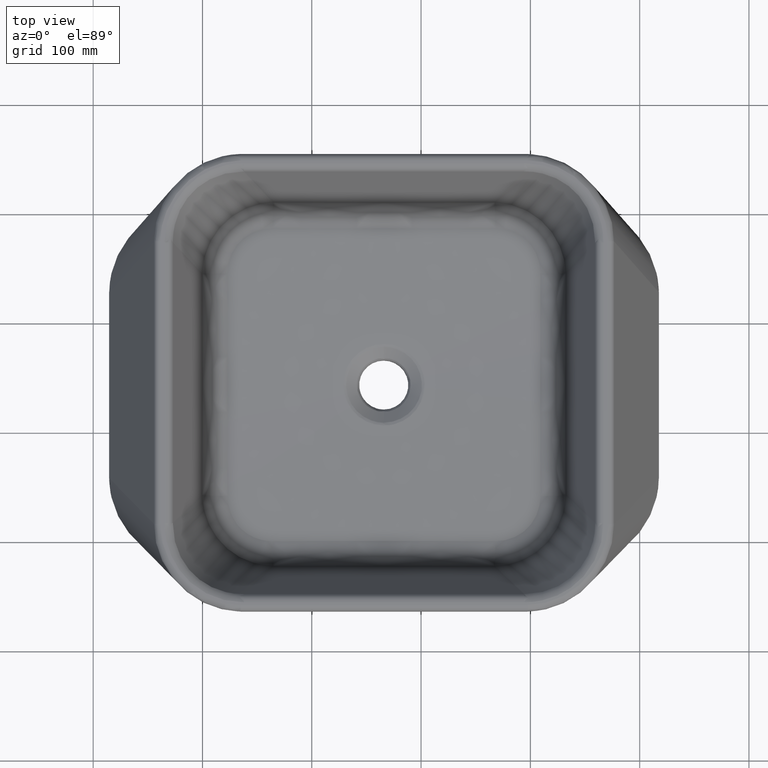
[diagram: clean part render]
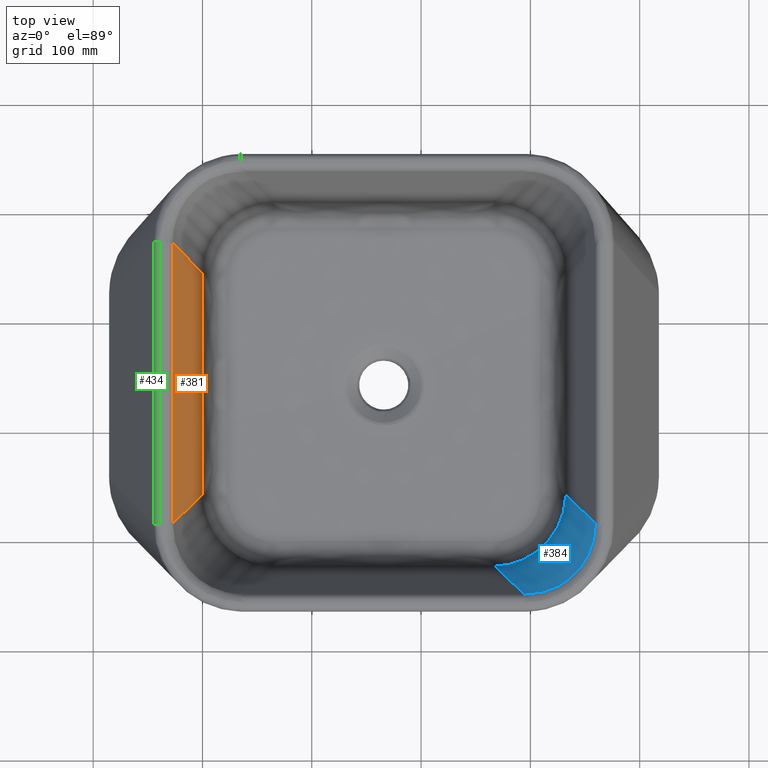
[diagram: same view with three faces highlighted in distinct colors, each labeled with its STEP entity id]
A machine part, top view with three faces highlighted in distinct colors.
Their STEP definitions:

[orange] entity #381 — the highlighted planar face has unit normal (-0.9558, 0, -0.2942).
#194=FACE_OUTER_BOUND('',#482,.T.);
#263=PLANE('',#1251);
#304=LINE('',#2039,#344);
#305=LINE('',#2060,#345);
#306=LINE('',#2062,#346);
#344=VECTOR('',#1362,1.);
#345=VECTOR('',#1365,1.);
#346=VECTOR('',#1366,1.);
#381=ADVANCED_FACE('',(#194),#263,.F.);
#482=EDGE_LOOP('',(#595,#596,#597,#598));
#595=ORIENTED_EDGE('',*,*,#1031,.T.);
#596=ORIENTED_EDGE('',*,*,#1033,.T.);
#597=ORIENTED_EDGE('',*,*,#1034,.T.);
#598=ORIENTED_EDGE('',*,*,#1035,.T.);
#929=VERTEX_POINT('',#2038);
#930=VERTEX_POINT('',#2040);
#931=VERTEX_POINT('',#2061);
#932=VERTEX_POINT('',#2063);
#1031=EDGE_CURVE('',#930,#929,#304,.T.);
#1033=EDGE_CURVE('',#929,#931,#305,.T.);
#1034=EDGE_CURVE('',#931,#932,#306,.T.);
#1035=EDGE_CURVE('',#932,#930,#1188,.T.);
#1188=B_SPLINE_CURVE_WITH_KNOTS('',3,(#2064,#2065,#2066,#2067,#2068,#2069),
 .UNSPECIFIED.,.F.,.F.,(4,2,4),(0.,0.5,1.),.UNSPECIFIED.);
#1251=AXIS2_PLACEMENT_3D('',#2070,#1367,#1368);
#1362=DIRECTION('',(-0.282204189228227,0.282204189228226,-0.916908714738866));
#1365=DIRECTION('',(1.,0.,0.));
#1366=DIRECTION('',(-0.284059022465868,-0.28204311631054,0.916385373245108));
#1367=DIRECTION('',(0.,0.95575602636285,0.294160531123902));
#1368=DIRECTION('',(0.,-0.294160531123902,0.955756026362849));
#2038=CARTESIAN_POINT('',(141.485163799286,-683.026463181772,94.8366251321797));
#2039=CARTESIAN_POINT('',(134.571365618408,-676.112665000894,72.3730259158481));
#2040=CARTESIAN_POINT('',(168.363300958717,-709.904600341203,182.166293287807));
#2060=CARTESIAN_POINT('',(451.357617568872,-683.026463181772,94.8366251321797));
#2061=CARTESIAN_POINT('',(398.225945721528,-683.026463181772,94.8366251321796));
#2062=CARTESIAN_POINT('',(366.780519402981,-714.248728032248,196.280784460849));
#2063=CARTESIAN_POINT('',(371.156142543528,-709.904157753693,182.164855278165));
#2064=CARTESIAN_POINT('',(371.156142543528,-709.904157753693,182.164855278165));
#2065=CARTESIAN_POINT('',(337.357340972138,-710.11672196062,182.855496952571));
#2066=CARTESIAN_POINT('',(303.55853756549,-710.256521693754,183.309719811485));
#2067=CARTESIAN_POINT('',(235.960923704815,-710.256706018121,183.310318699188));
#2068=CARTESIAN_POINT('',(202.162113250221,-710.117068153168,182.856621765653));
#2069=CARTESIAN_POINT('',(168.363300958717,-709.904600341203,182.166293287807));
#2070=CARTESIAN_POINT('',(451.357617568872,-677.214404911252,75.9526854805953));

[blue] entity #384 — the highlighted cylindrical surface (partial cylindrical patch) has radius 68 mm, axis along (-0.282, 0.2841, -0.9164).
#172=CYLINDRICAL_SURFACE('',#1256,68.);
#197=FACE_OUTER_BOUND('',#485,.T.);
#279=ELLIPSE('',#1255,75.6712497248127,68.);
#309=LINE('',#2096,#349);
#310=LINE('',#2106,#350);
#349=VECTOR('',#1375,1.);
#350=VECTOR('',#1380,1.);
#384=ADVANCED_FACE('',(#197),#172,.F.);
#485=EDGE_LOOP('',(#607,#608,#609,#610));
#607=ORIENTED_EDGE('',*,*,#1040,.F.);
#608=ORIENTED_EDGE('',*,*,#1042,.T.);
#609=ORIENTED_EDGE('',*,*,#1043,.F.);
#610=ORIENTED_EDGE('',*,*,#1044,.T.);
#935=VERTEX_POINT('',#2095);
#936=VERTEX_POINT('',#2097);
#937=VERTEX_POINT('',#2105);
#938=VERTEX_POINT('',#2107);
#1040=EDGE_CURVE('',#935,#936,#309,.T.);
#1042=EDGE_CURVE('',#935,#937,#279,.T.);
#1043=EDGE_CURVE('',#938,#937,#310,.T.);
#1044=EDGE_CURVE('',#938,#936,#1191,.T.);
#1191=B_SPLINE_CURVE_WITH_KNOTS('',3,(#2108,#2109,#2110,#2111,#2112,#2113,
#2114,#2115,#2116,#2117,#2118,#2119,#2120,#2121,#2122,#2123,#2124,#2125),
 .UNSPECIFIED.,.F.,.F.,(4,2,2,2,2,2,2,2,4),(0.,0.125,0.25,0.375,0.5,0.625,
0.75,0.875,1.),.UNSPECIFIED.);
#1255=AXIS2_PLACEMENT_3D('',#2104,#1378,#1379);
#1256=AXIS2_PLACEMENT_3D('',#2126,#1381,#1382);
#1375=DIRECTION('',(-0.284059022465868,0.28204311631054,0.916385373245108));
#1378=DIRECTION('',(-0.0300308530385195,0.029817730494604,-0.99910412411016));
#1379=DIRECTION('',(-0.708984577934093,0.703953065953651,0.0423196075840737));
#1380=DIRECTION('',(0.284059022465868,-0.28204311631054,-0.916385373245108));
#1381=DIRECTION('',(-0.284059022465868,0.28204311631054,0.916385373245108));
#1382=DIRECTION('',(0.955163352415392,0.,0.296079330927694));
#2095=CARTESIAN_POINT('',(463.222257355921,-1004.43777734477,94.8212747337493));
#2096=CARTESIAN_POINT('',(431.731627367227,-973.170629624926,196.411262847507));
#2097=CARTESIAN_POINT('',(436.133303742113,-977.541068243585,182.211284925001));
#2104=CARTESIAN_POINT('',(391.296022342936,-997.512151281524,97.1899093811709));
#2105=CARTESIAN_POINT('',(398.225945721528,-1069.38430426808,94.8366251321797));
#2106=CARTESIAN_POINT('',(405.220439414173,-1076.32915953429,72.2721184407401));
#2107=CARTESIAN_POINT('',(371.156142543528,-1042.50660969615,182.164855278165));
#2108=CARTESIAN_POINT('',(371.156142543528,-1042.50660969615,182.164855278165));
#2109=CARTESIAN_POINT('',(375.407232369072,-1042.39556239521,182.52565870304));
#2110=CARTESIAN_POINT('',(379.606639001385,-1041.89560097669,182.848963986102));
#2111=CARTESIAN_POINT('',(387.900960627135,-1040.1089491255,183.418953903754));
#2112=CARTESIAN_POINT('',(391.9656394581,-1038.82173470562,183.662954768374));
#2113=CARTESIAN_POINT('',(399.72152646837,-1035.52995964156,184.056247542009));
#2114=CARTESIAN_POINT('',(403.47107238,-1033.50106760187,184.208534232473));
#2115=CARTESIAN_POINT('',(410.516412322763,-1028.75112954329,184.413171436656));
#2116=CARTESIAN_POINT('',(413.767397981305,-1026.06831743181,184.464915933273));
#2117=CARTESIAN_POINT('',(419.734493655097,-1020.09662851042,184.468685146404));
#2118=CARTESIAN_POINT('',(422.467029862097,-1016.77263181069,184.419094876837));
#2119=CARTESIAN_POINT('',(427.172129525238,-1009.76848705272,184.222354074876));
#2120=CARTESIAN_POINT('',(429.173544086214,-1006.06894027953,184.07604555093));
#2121=CARTESIAN_POINT('',(432.474761723522,-998.275254490876,183.688021187579));
#2122=CARTESIAN_POINT('',(433.758434909663,-994.193501655727,183.44597621716));
#2123=CARTESIAN_POINT('',(435.522884178058,-985.971964392212,182.887411413265));
#2124=CARTESIAN_POINT('',(436.022414473367,-981.79177789476,182.569017987117));
#2125=CARTESIAN_POINT('',(436.133303742113,-977.541068243585,182.211284925001));
#2126=CARTESIAN_POINT('',(378.604092299481,-984.910293152263,138.134565703326));

[green] entity #434 — the highlighted cylindrical surface (edge-blend (fillet) strip) has radius 6 mm, axis along (-0, -1, 0).
#158=CIRCLE('',#1315,6.);
#160=CIRCLE('',#1318,6.);
#186=CYLINDRICAL_SURFACE('',#1319,6.);
#243=FACE_OUTER_BOUND('',#539,.T.);
#313=LINE('',#2644,#353);
#335=LINE('',#2706,#375);
#353=VECTOR('',#1389,1.);
#375=VECTOR('',#1433,1.);
#434=ADVANCED_FACE('',(#243),#186,.T.);
#539=EDGE_LOOP('',(#825,#826,#827,#828));
#825=ORIENTED_EDGE('',*,*,#1148,.T.);
#826=ORIENTED_EDGE('',*,*,#1055,.F.);
#827=ORIENTED_EDGE('',*,*,#1150,.F.);
#828=ORIENTED_EDGE('',*,*,#1084,.F.);
#945=VERTEX_POINT('',#2643);
#946=VERTEX_POINT('',#2645);
#971=VERTEX_POINT('',#2700);
#974=VERTEX_POINT('',#2705);
#1055=EDGE_CURVE('',#945,#946,#313,.T.);
#1084=EDGE_CURVE('',#974,#971,#335,.T.);
#1148=EDGE_CURVE('',#974,#946,#158,.T.);
#1150=EDGE_CURVE('',#971,#945,#160,.T.);
#1315=AXIS2_PLACEMENT_3D('',#4181,#1524,#1525);
#1318=AXIS2_PLACEMENT_3D('',#4214,#1530,#1531);
#1319=AXIS2_PLACEMENT_3D('',#4215,#1532,#1533);
#1389=DIRECTION('',(1.,2.20046511983548E-017,0.));
#1433=DIRECTION('',(-1.,-2.20046511983548E-017,-8.1727598767674E-034));
#1524=DIRECTION('',(-1.,0.,0.));
#1525=DIRECTION('',(0.,0.,1.));
#1530=DIRECTION('',(-1.,0.,0.));
#1531=DIRECTION('',(0.,0.,1.));
#1532=DIRECTION('',(1.,2.20046511983548E-017,0.));
#1533=DIRECTION('',(0.,1.,0.));
#2643=CARTESIAN_POINT('',(140.480756880332,-671.515486031748,89.1899093811709));
#2644=CARTESIAN_POINT('',(481.607617568872,-671.515486031748,89.1899093811709));
#2645=CARTESIAN_POINT('',(399.234478257414,-671.515486031748,89.1899093811709));
#2700=CARTESIAN_POINT('',(140.480756880332,-665.789244401214,93.3982183395177));
#2705=CARTESIAN_POINT('',(399.234478257414,-665.789244401214,93.3982183395177));
#2706=CARTESIAN_POINT('',(481.607617568872,-665.789244401214,93.3982183395177));
#4181=CARTESIAN_POINT('',(399.234478257414,-671.515486031748,95.1899093811709));
#4214=CARTESIAN_POINT('',(140.480756880332,-671.515486031748,95.1899093811709));
#4215=CARTESIAN_POINT('',(481.607617568872,-671.515486031748,95.1899093811709));